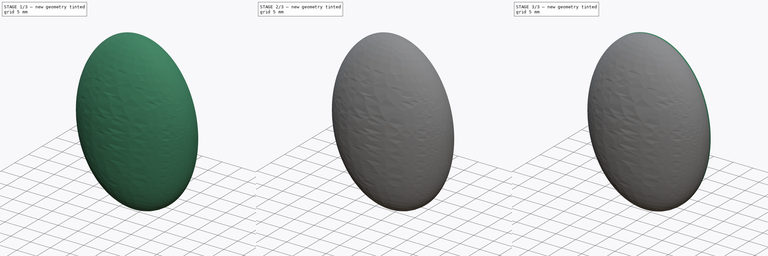
[diagram: build sequence overview — one tinted view per stage of 3, left to right]
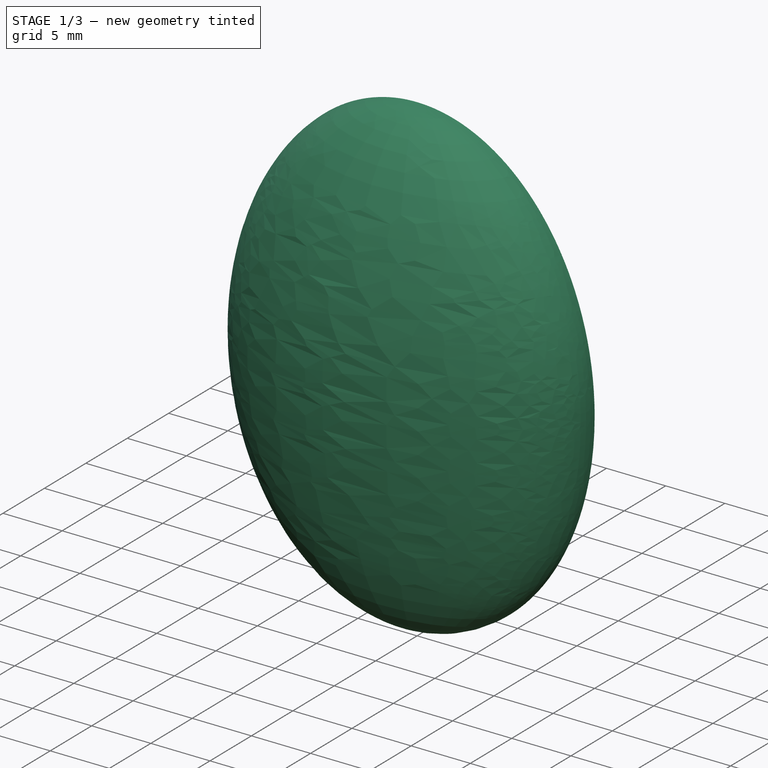
[diagram: stage 1 of 3 — iso view after this stage's code; geometry added in this stage tinted green]
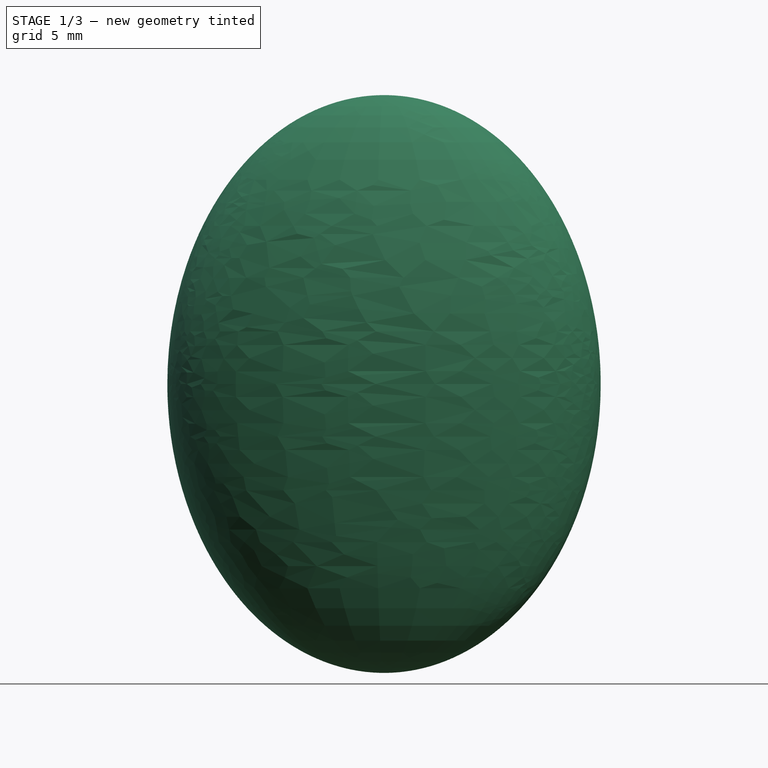
[diagram: stage 1 of 3 — front view after this stage's code; geometry added in this stage tinted green]
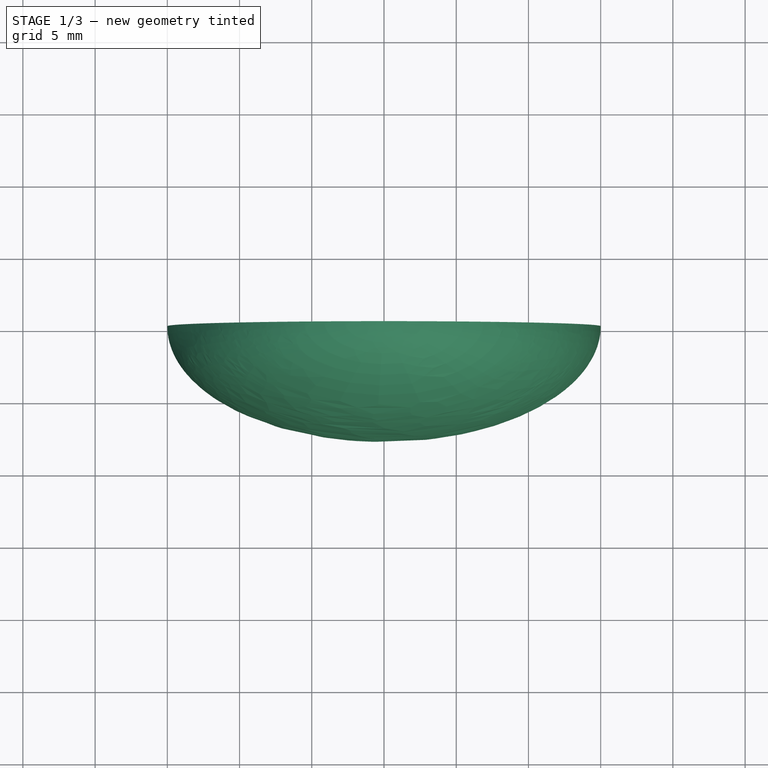
[diagram: stage 1 of 3 — top view after this stage's code; geometry added in this stage tinted green]
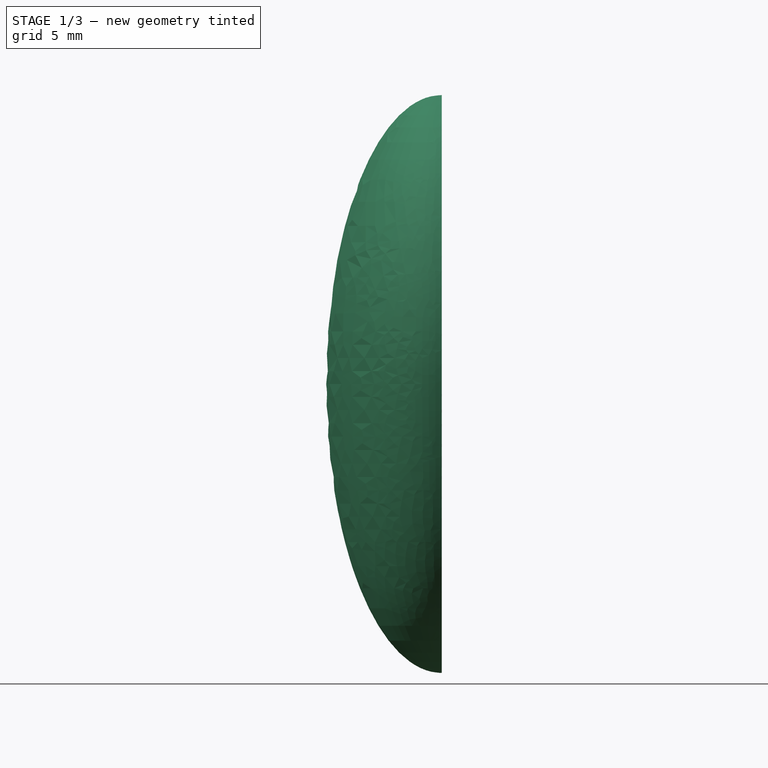
[diagram: stage 1 of 3 — right view after this stage's code; geometry added in this stage tinted green]
FCSTD DOCUMENT  (FreeCAD 0.21R33694 (Git))
Label: Googly_eyes
Comment: Parametric model using a configuration table.\nChange the model to choose a specific size.\nNo assembly is completed with no googly eyes. (o) (o)\nAdd your own sizes.
License: Creative Commons Attribution-NonCommercial-ShareAlike 4.0
LicenseURL: https://creativecommons.org/licenses/by-nc-sa/4.0/
objects: Sketcher::SketchObject×3, PartDesign::Body×3, PartDesign::Pad×2, Spreadsheet::Sheet×1, PartDesign::Fillet×1, PartDesign::AdditiveEllipsoid×1, PartDesign::Pocket×1, App::Part×1
note: 16 computed .brp shape members not serialized (recipe doc carries the construction recipe); baked Part::Feature solids carry a one-line shape summary decoded from their .brp

FEATURE [PartDesign::Body] Body  label="Pupil"
  Group = -> [Sketch,Pad,Fillet]
  Origin = -> Origin001
  Tip = -> Fillet
FEATURE [PartDesign::AdditiveEllipsoid] Ellipsoid
  Angle1 = -90
  Angle2 = 90
  Angle3 = 360
  AttacherType = Attacher::AttachEngine3D
  Radius1 = 20
  Radius2 = 15
  Radius3 = 8
  expr: Radius1 = Spreadsheet.cover_h
  expr: Radius2 = Spreadsheet.cover_w
  expr: Radius3 = Spreadsheet.cover_t
FEATURE [Sketcher::SketchObject] Sketch002
  AttachmentOffset = pos=(0,0,-0.01) rot=(0,0,1;0rad)
  FullyConstrained = true
  MapMode = 5
  Placement = pos=(0,0.01,0) rot=(1,0,0;1.5708rad)
  Support = -> [XZ_Plane003]
  expr: Constraints[10] = 2 * Spreadsheet.cover_w
  expr: Constraints[11] = 2 * Spreadsheet.cover_h
  sketch-geometry (5):
    g0: LineSegment StartX=15 StartY=-20 StartZ=0 EndX=15 EndY=20 EndZ=0
    g1: LineSegment StartX=15 StartY=20 StartZ=0 EndX=-15 EndY=20 EndZ=0
    g2: LineSegment StartX=-15 StartY=20 StartZ=0 EndX=-15 EndY=-20 EndZ=0
    g3: LineSegment StartX=-15 StartY=-20 StartZ=0 EndX=15 EndY=-20 EndZ=0
    g4: GeomPoint X=0 Y=0 Z=0
  constraints (12):
    c: Coincident(g0,g1)
    c: Coincident(g1,g2)
    c: Coincident(g2,g3)
    c: Coincident(g3,g0)
    c: Horizontal(g1)
    c: Horizontal(g3)
    c: Vertical(g0)
    c: Vertical(g2)
    c: Symmetric(g1,g0,g4)
    c: Coincident(g4,g-1)
    c: DistanceX(g1,g1) = 30
    c: DistanceY(g2,g2) = 40
FEATURE [PartDesign::Pocket] Pocket
  BaseFeature = -> Ellipsoid
  Direction = (0,1,2e-16)
  Length = 8
  Length2 = 5
  Offset = 16
  Profile = -> Sketch002
  ReferenceAxis = -> Sketch002 [N_Axis]
  Type = 0
  expr: Length = Spreadsheet.cover_t
  expr: Offset = 2 * Spreadsheet.cover_t
FEATURE [PartDesign::Body] Body002  label="Plastic cover"
  Group = -> [Ellipsoid,Sketch002,Pocket]
  Origin = -> Origin003
  Tip = -> Pocket
FEATURE [App::Part] Part  label="Googly eyes"
  Group = -> [Body,Body001,Body002]
  Model = 22
  Origin = -> Origin
  Size = 10
  expr: .Model.Enum = Spreadsheet.cells[<<A14:|>>]
  expr: .Size.Enum = Spreadsheet.cells[<<A14:|>>]
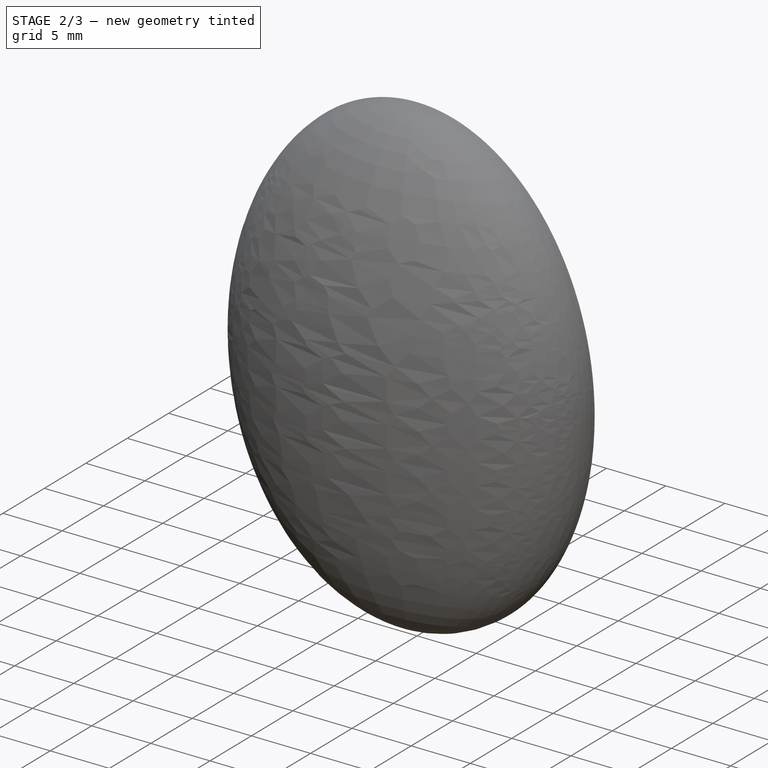
[diagram: stage 2 of 3 — iso view after this stage's code; geometry added in this stage tinted green]
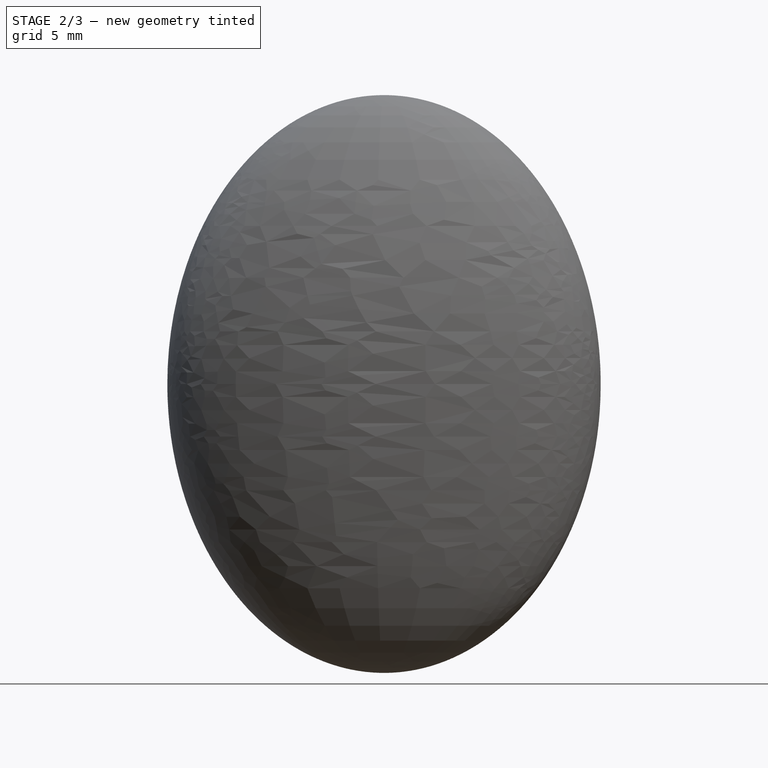
[diagram: stage 2 of 3 — front view after this stage's code; geometry added in this stage tinted green]
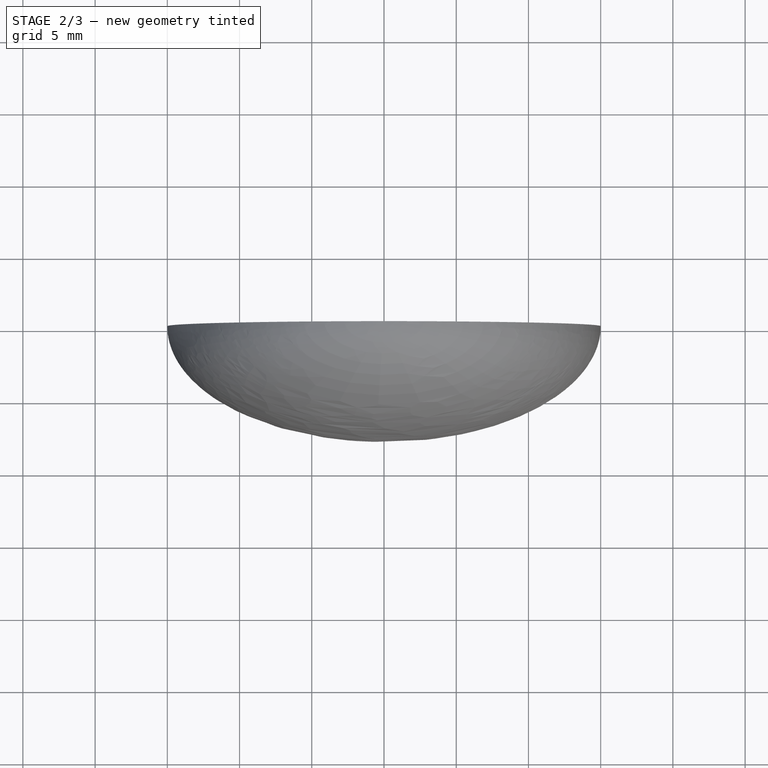
[diagram: stage 2 of 3 — top view after this stage's code; geometry added in this stage tinted green]
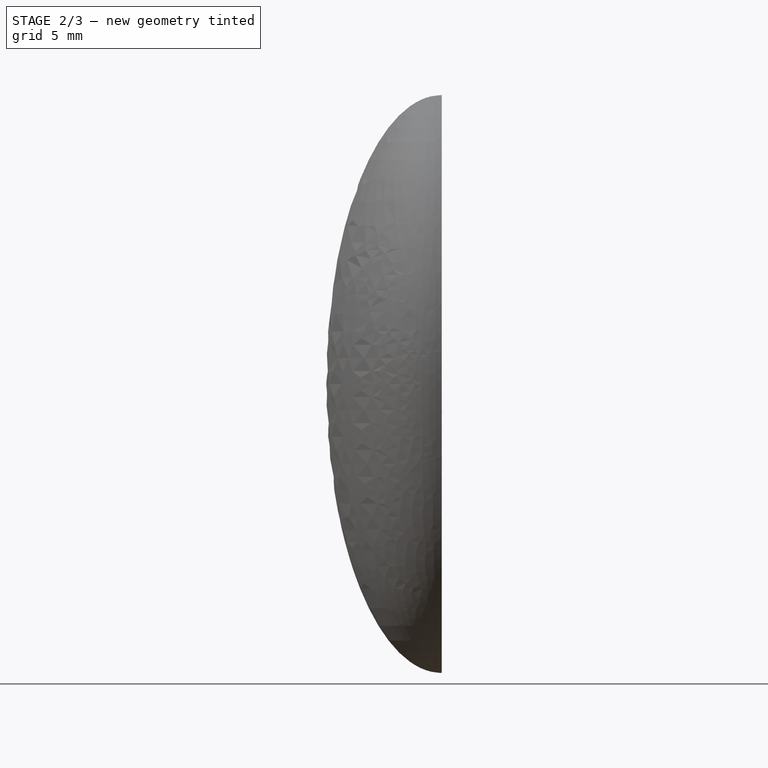
[diagram: stage 2 of 3 — right view after this stage's code; geometry added in this stage tinted green]
FEATURE [Sketcher::SketchObject] Sketch
  FullyConstrained = true
  MapMode = 5
  Placement = pos=(0,0,0) rot=(1,0,0;1.5708rad)
  Support = -> [XZ_Plane001]
  expr: Constraints[5] = Spreadsheet.pupil_h
  expr: Constraints[6] = Spreadsheet.dx
  expr: Constraints[7] = Spreadsheet.dy
  expr: Constraints[8] = Spreadsheet.pupil_w
  sketch-geometry (5):
    g0: Ellipse CenterX=-1 CenterY=0.5 CenterZ=0 NormalX=0 NormalY=0 NormalZ=1 MajorRadius=10 MinorRadius=7.5 AngleXU=1.5708
    g1: LineSegment StartX=-1 StartY=10.5 StartZ=0 EndX=-1 EndY=-9.5 EndZ=0
    g2: LineSegment StartX=-8.5 StartY=0.5 StartZ=0 EndX=6.5 EndY=0.5 EndZ=0
    g3: GeomPoint X=-1 Y=7.11438 Z=0
    g4: GeomPoint X=-1 Y=-6.11438 Z=0
  constraints (6):
    c: InternalAlignment(g1-g4 -> g0) x4
    c: Vertical(g1)
    c: DistanceY(g1,g1) = 20
    c: DistanceX(g0) = -1
    c: DistanceY(g0) = 0.5
    c: DistanceX(g2,g2) = 15
FEATURE [Spreadsheet::Sheet] Spreadsheet
  cells = A1='Googly eyes; A2='Enhance your project with a pair of wiggle googly eyes.; A3='The eyes have eliptic shape,vertically is the major radius; A4='Add your own sizes at the end of the table; A6='Pupil vertical displacement; B6(dy)==0.5 mm; A7='Pupil horizontal displacement; B7(dx)==-1 mm; F7='-2mm; G7==5 mm; H7==-2 mm; A8='C; B8='Circular; C8='Slightly smaller width to avoid error because shape is an ellipse, 'Width=0.99*Height; A9='E; B9='Elliptical; C9='Width=0.75*Height; B11='Pupil; E11='White base; H11='Cover; B12='Height; C12='Width; D12='Thickness; E12='Height; F12='Width; G12='Thickness; H12='Height; I12='Width; J12='Thickness; A13==hiddenref(Part.Model.String); B13(pupil_h)==.B36; C13(pupil_w)==.C36; D13(pupil_t)==.D36; E13(base_h)==.E36; F13(base_w)==.F36; G13(base_t)==.G36; H13(cover_h)==.H36; I13(cover_w)==.I36; J13(cover_t)==.J36; A14='C_4mm; B14==E14 / 2; C14==B14 * 0.99; D14==0.5 mm; E14==4 mm; F14==E14 * 0.99; G14==0.1 mm; H14==E14 / 2; I14==F14 / 2; J14==2 * D14; A15='C_5mm; B15==E15 / 2; C15==B15 * 0.99; D15==0.6 mm; E15==5 mm; F15==E15 * 0.99; G15==0.1 mm; H15==E15 / 2; I15==F15 / 2; J15==2 * D15; A16='C_6mm; B16==E16 / 2; C16==B16 * 0.99; D16==0.7 mm; E16==6 mm; F16==E16 * 0.99; G16==0.1 mm; H16==E16 / 2; I16==F16 / 2; J16==2 * D16; A17='C_7mm; B17==E17 / 2; C17==B17 * 0.99; D17==0.8 mm; E17==7 mm; F17==E17 * 0.99; G17==0.1 mm; H17==E17 / 2; I17==F17 / 2; J17==2 * D17; A18='C_8mm; B18==E18 / 2; C18==B18 * 0.99; D18==0.9 mm; E18==8 mm; F18==E18 * 0.99; G18==0.1 mm; H18==E18 / 2; I18==F18 / 2; J18==2 * D18; A19='C_10mm; B19==E19 / 2; C19==B19 * 0.99; D19==1 mm; E19==10 mm; F19==E19 * 0.99; G19==0.1 mm; H19==E19 / 2; I19==F19 / 2; J19==2 * D19; A20='C15mm; B20==E20 / 2; C20==B20 * 0.99; D20==1.5 mm; E20==15 mm; F20==E20 * 0.99; G20==0.2 mm; H20==E20 / 2; I20==F20 / 2; J20==2 * D20; A21='C_20mm; B21==E21 / 2; C21==B21 * 0.99; D21==2 mm; E21==20 mm; F21==E21 * 0.99; G21==0.2 mm; H21==E21 / 2; I21==F21 / 2; J21==2 * D21; A22='C_25mm; B22==E22 / 2; C22==B22 * 0.99; D22==2.5 mm; E22==25 mm; F22==E22 * 0.99; G22==0.2 mm; H22==E22 / 2; I22==F22 / 2; J22==2 * D22; A23='C_30mm; B23==E23 / 2; C23==B23 * 0.99; D23==3 mm; E23==30 mm; F23==E23 * 0.99; G23==0.2 mm; H23==E23 / 2; I23==F23 / 2; J23==2 * D23; A24='C_40mm; B24==E24 / 2; C24==B24 * 0.99; D24==4 mm; E24==40 mm; F24==E24 * 0.99; G24==0.4 mm; H24==E24 / 2; I24==F24 / 2; J24==2 * D24; A25='C_50mm; B25==E25 / 2; C25==B25 * 0.99; D25==5 mm; E25==50 mm; F25==E25 * 0.99; G25==0.5 mm; H25==E25 / 2; I25==F25 / 2; J25==2 * D25; A26='E_4mm; B26==E26 / 2; C26==B26 * 0.75; D26==0.5 mm; E26==4 mm; F26==E26 * 0.75; G26==0.1 mm; H26==E26 / 2; I26==F26 / 2; J26==2 * D26; A27='E_5mm; B27==E27 / 2; C27==B27 * 0.75; D27==0.6 mm; E27==5 mm; F27==E27 * 0.75; G27==0.1 mm; H27==E27 / 2; I27==F27 / 2; J27==2 * D27; A28='E_6mm; B28==E28 / 2; C28==B28 * 0.75; D28==0.7 mm; E28==6 mm; F28==E28 * 0.75; G28==0.1 mm; H28==E28 / 2; I28==F28 / 2; J28==2 * D28; A29='E_7mm; B29==E29 / 2; C29==B29 * 0.75; D29==0.8 mm; E29==7 mm; F29==E29 * 0.75; G29==0.1 mm; H29==E29 / 2; I29==F29 / 2; J29==2 * D29; A30='E_8mm; +79 more cells
  expr: .cells.Bind.B13.J13 = tuple(.cells; <<B>> + str(hiddenref(Part.Model) + 14); <<J>> + str(hiddenref(Part.Model) + 14))
FEATURE [PartDesign::Pad] Pad
  Direction = (0,-1,-2e-16)
  Length = 4
  Length2 = 10
  Placement = pos=(0,0,0) rot=(1,0,0;1.5708rad)
  Profile = -> Sketch
  ReferenceAxis = -> Sketch [N_Axis]
  Type = 0
  expr: Length = Spreadsheet.pupil_t
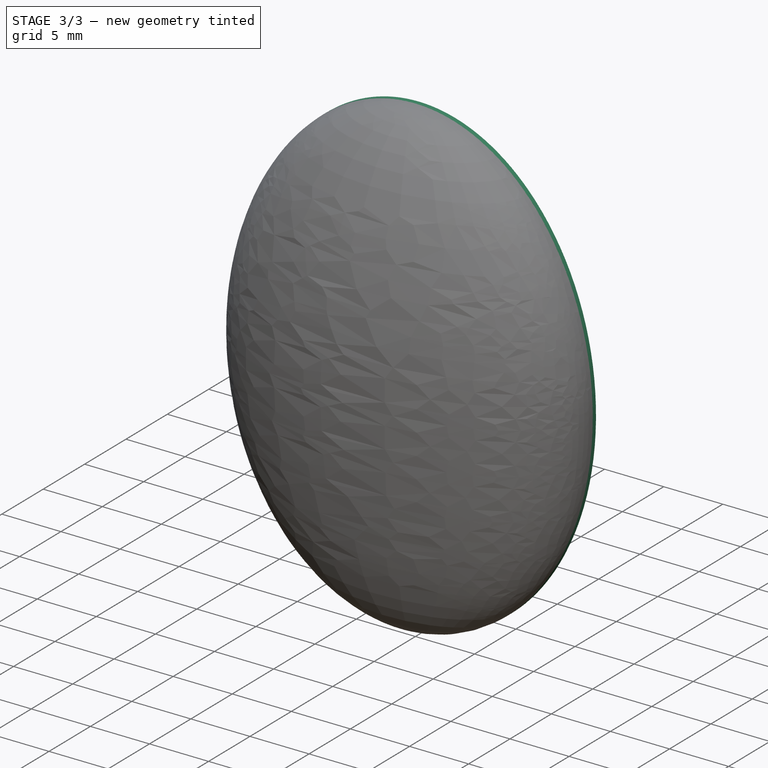
[diagram: stage 3 of 3 — iso view after this stage's code; geometry added in this stage tinted green]
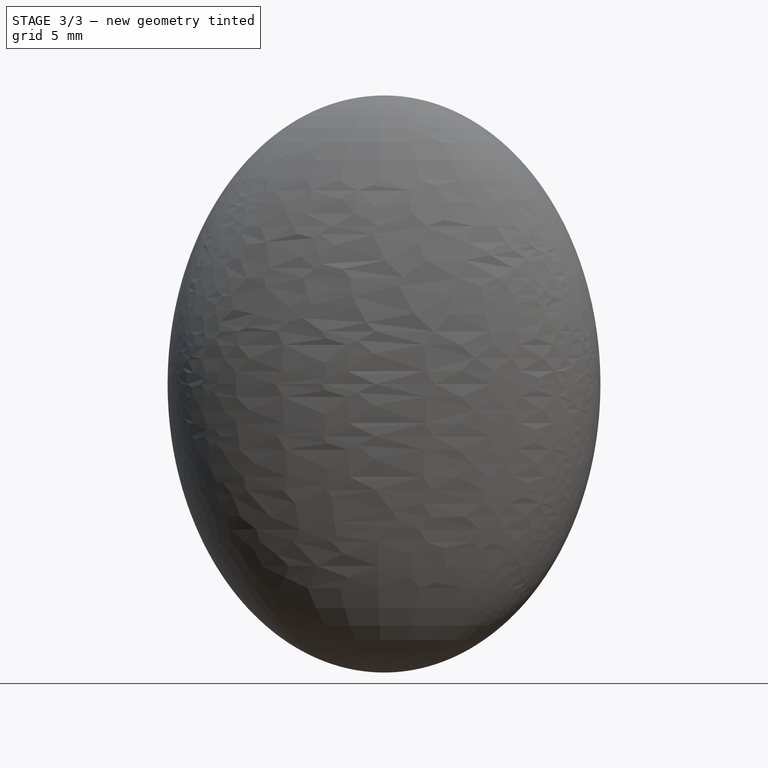
[diagram: stage 3 of 3 — front view after this stage's code; geometry added in this stage tinted green]
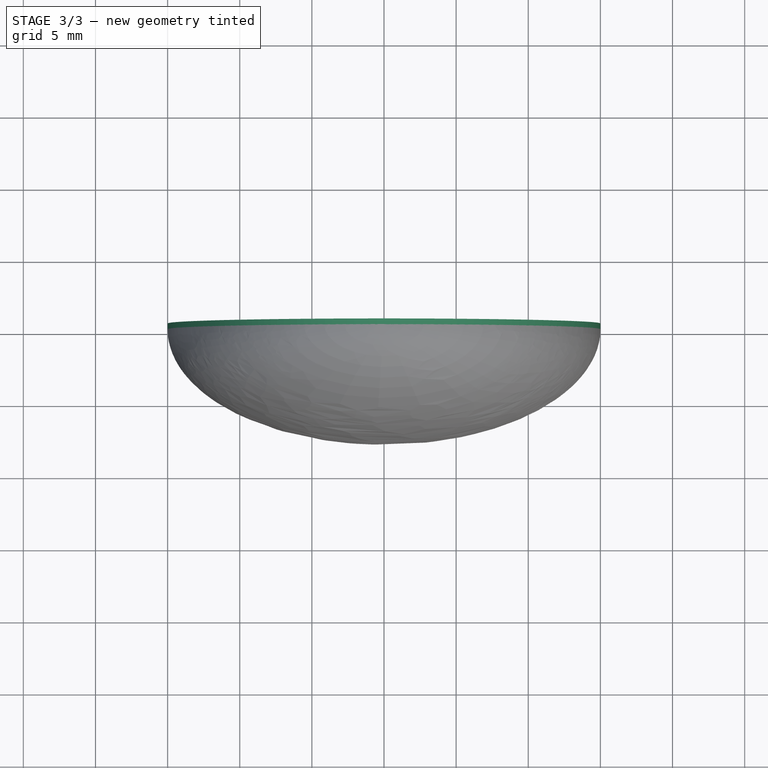
[diagram: stage 3 of 3 — top view after this stage's code; geometry added in this stage tinted green]
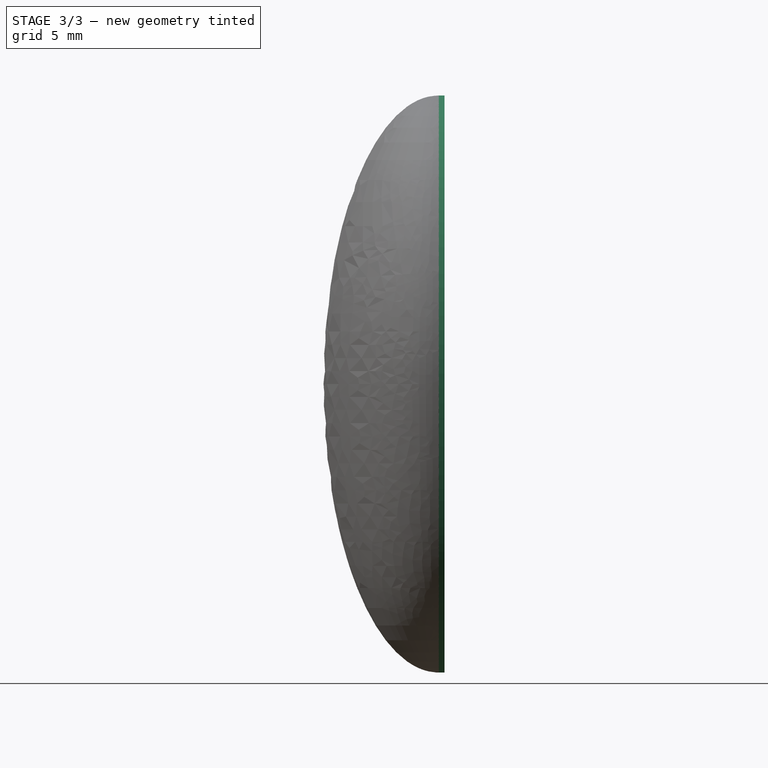
[diagram: stage 3 of 3 — right view after this stage's code; geometry added in this stage tinted green]
FEATURE [Sketcher::SketchObject] Sketch001
  FullyConstrained = true
  MapMode = 5
  Placement = pos=(0,0,0) rot=(1,0,0;1.5708rad)
  Support = -> [XZ_Plane002]
  expr: Constraints[5] = Spreadsheet.base_h
  expr: Constraints[7] = Spreadsheet.base_w
  sketch-geometry (5):
    g0: Ellipse CenterX=0 CenterY=0 CenterZ=0 NormalX=0 NormalY=0 NormalZ=1 MajorRadius=20 MinorRadius=15 AngleXU=1.5708
    g1: LineSegment StartX=0 StartY=20 StartZ=0 EndX=0 EndY=-20 EndZ=0
    g2: LineSegment StartX=-15 StartY=0 StartZ=0 EndX=15 EndY=0 EndZ=0
    g3: GeomPoint X=0 Y=13.2288 Z=0
    g4: GeomPoint X=0 Y=-13.2288 Z=0
  constraints (5):
    c: InternalAlignment(g1-g4 -> g0) x4
    c: Coincident(g0,g-1)
    c: DistanceY(g1,g1) = 40
    c: Vertical(g1)
    c: DistanceX(g2,g2) = 30
FEATURE [PartDesign::Pad] Pad001
  Direction = (0,-1,-2e-16)
  Length = 0.4
  Length2 = 10
  Placement = pos=(0,0,0) rot=(1,0,0;1.5708rad)
  Profile = -> Sketch001
  ReferenceAxis = -> Sketch001 [N_Axis]
  Reversed = true
  Type = 0
  expr: Length = Spreadsheet.base_t
FEATURE [PartDesign::Body] Body001  label="White base"
  Group = -> [Sketch001,Pad001]
  Origin = -> Origin002
  Tip = -> Pad001
FEATURE [PartDesign::Fillet] Fillet
  Base = -> Pad [Edge3]
  BaseFeature = -> Pad
  Placement = pos=(0,0,0) rot=(1,0,0;1.5708rad)
  Radius = 3.96
  SupportTransform = false
  UseAllEdges = false
  expr: Radius = 0.99 * Spreadsheet.pupil_t
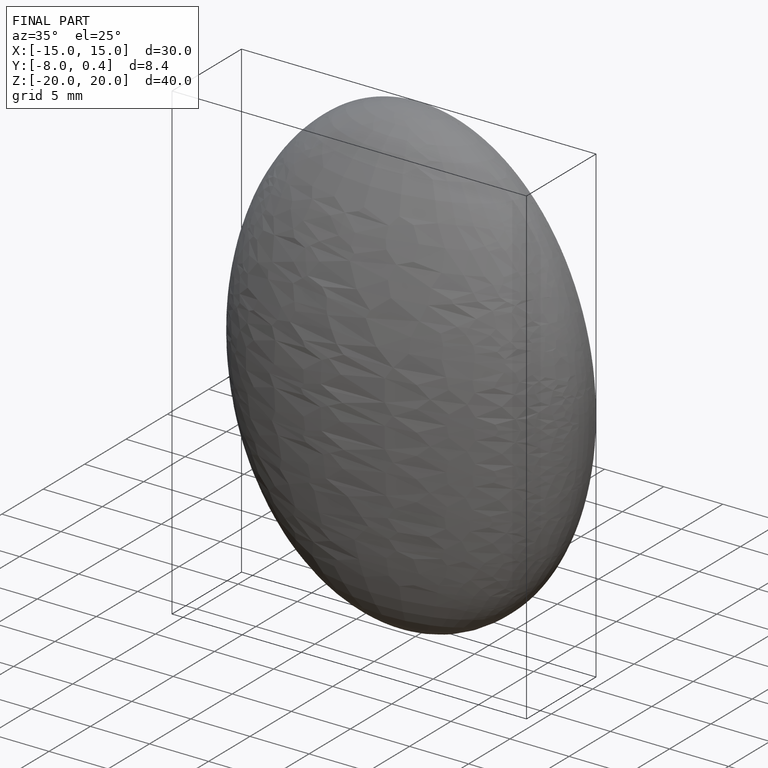
[diagram: finished part — iso view with bounding-box wireframe]
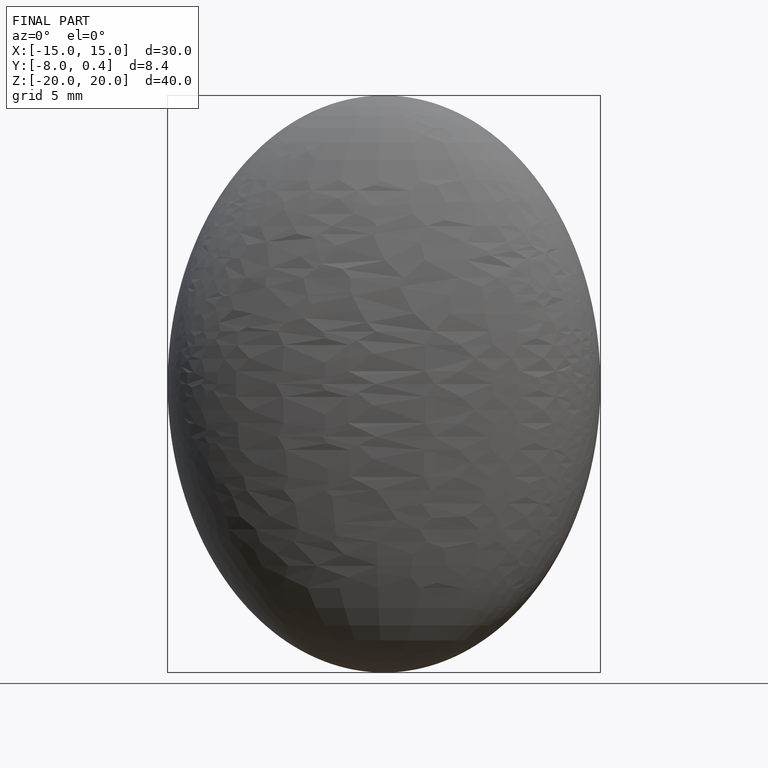
[diagram: finished part — front view with bounding-box wireframe]
